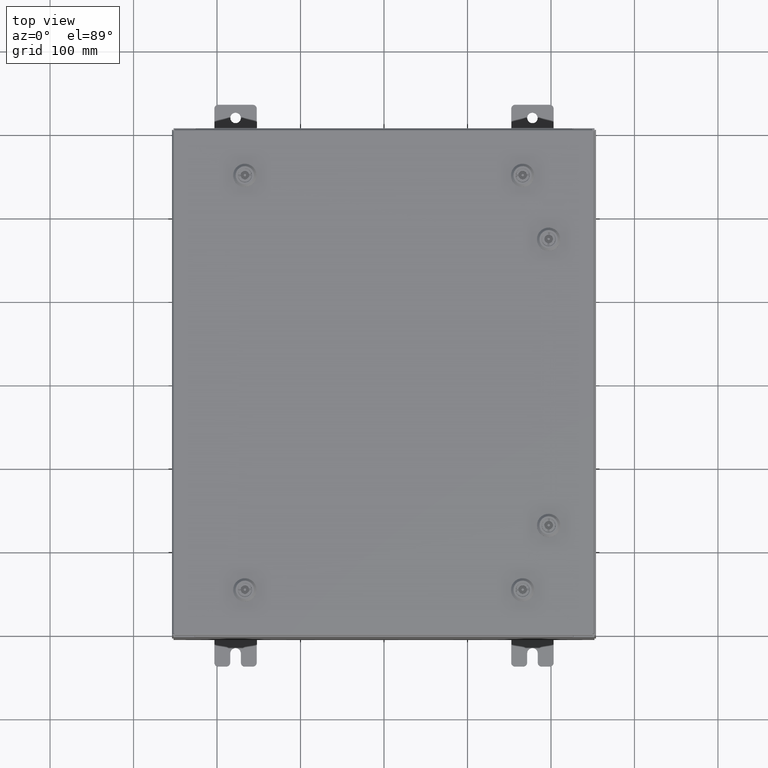
[diagram: clean part render]
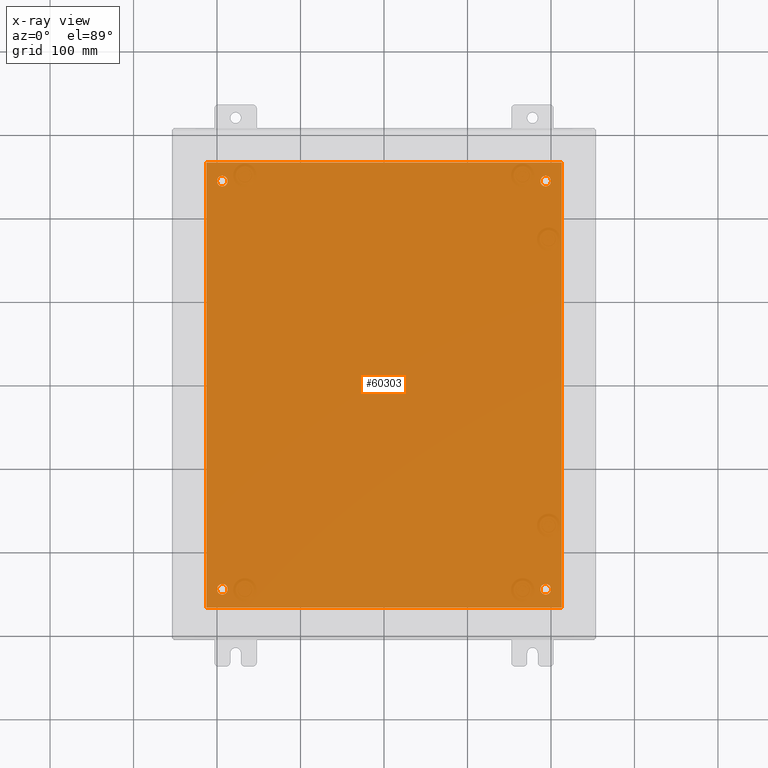
[diagram: x-ray — body ghosted, one internal face saturated and labeled with its STEP entity id]
A machine part, top view, then the same camera in x-ray: the body is ghosted and one INTERNAL B-rep face — a face not visible from any outside direction — is saturated and labeled: STEP entity #60303.
In plain terms, the highlighted planar face has unit normal (0, 0, -1).
Its self-contained STEP definition (entity closure, byte-faithful):
#283 = EDGE_CURVE ( 'NONE', #20112, #53220, #18385, .T. ) ;
#421 = AXIS2_PLACEMENT_3D ( 'NONE', #8248, #42482, #13147 ) ;
#750 = VERTEX_POINT ( 'NONE', #38375 ) ;
#876 = CARTESIAN_POINT ( 'NONE',  ( -7.375000000000004400, -9.625000000000001800, -0.1039999999999999800 ) ) ;
#1054 = VERTEX_POINT ( 'NONE', #876 ) ;
#1254 = CIRCLE ( 'NONE', #40331, 0.2499999999999987000 ) ;
#1993 = CIRCLE ( 'NONE', #15356, 0.2499999999999987000 ) ;
#2458 = ORIENTED_EDGE ( 'NONE', *, *, #34299, .T. ) ;
#3532 = AXIS2_PLACEMENT_3D ( 'NONE', #3959, #38184, #8889 ) ;
#3959 = CARTESIAN_POINT ( 'NONE',  ( -7.625000000000004400, 9.625000000000001800, -0.1039999999999999800 ) ) ;
#4273 = ORIENTED_EDGE ( 'NONE', *, *, #26364, .F. ) ;
#4974 = CIRCLE ( 'NONE', #61328, 0.2499999999999998100 ) ;
#5255 = EDGE_CURVE ( 'NONE', #9130, #750, #28496, .T. ) ;
#5302 = VECTOR ( 'NONE', #9728, 39.37007874015748100 ) ;
#6012 = CARTESIAN_POINT ( 'NONE',  ( -7.375000000000004400, 9.625000000000001800, -0.1039999999999999800 ) ) ;
#6296 = VECTOR ( 'NONE', #17608, 39.37007874015748100 ) ;
#6878 = DIRECTION ( 'NONE',  ( -0.0000000000000000000, -0.0000000000000000000, 1.000000000000000000 ) ) ;
#7335 = ORIENTED_EDGE ( 'NONE', *, *, #52748, .T. ) ;
#7644 = CARTESIAN_POINT ( 'NONE',  ( 7.625000000000004400, -9.625000000000001800, -0.1039999999999999800 ) ) ;
#7758 = ORIENTED_EDGE ( 'NONE', *, *, #18011, .T. ) ;
#8248 = CARTESIAN_POINT ( 'NONE',  ( -7.625000000000004400, -9.625000000000001800, -0.1039999999999999800 ) ) ;
#8889 = DIRECTION ( 'NONE',  ( -1.000000000000000000, 0.0000000000000000000, 0.0000000000000000000 ) ) ;
#9130 = VERTEX_POINT ( 'NONE', #6012 ) ;
#9234 = CARTESIAN_POINT ( 'NONE',  ( 0.0000000000000000000, 0.0000000000000000000, -0.1039999999999999800 ) ) ;
#9343 = CARTESIAN_POINT ( 'NONE',  ( 7.875000000000002700, 9.625000000000001800, -0.1039999999999999800 ) ) ;
#9728 = DIRECTION ( 'NONE',  ( 0.0000000000000000000, -1.000000000000000000, 0.0000000000000000000 ) ) ;
#10306 = EDGE_LOOP ( 'NONE', ( #2458, #47687 ) ) ;
#11452 = CARTESIAN_POINT ( 'NONE',  ( 8.382999999999999100, -10.50000000000000200, -0.1039999999999998100 ) ) ;
#11831 = CARTESIAN_POINT ( 'NONE',  ( 8.382999999999999100, 10.50000000000000200, -0.1039999999999999800 ) ) ;
#12071 = CARTESIAN_POINT ( 'NONE',  ( 7.625000000000004400, -9.625000000000001800, -0.1039999999999999800 ) ) ;
#12523 = ORIENTED_EDGE ( 'NONE', *, *, #44602, .T. ) ;
#12533 = DIRECTION ( 'NONE',  ( -1.000000000000000000, 0.0000000000000000000, 0.0000000000000000000 ) ) ;
#13147 = DIRECTION ( 'NONE',  ( -1.000000000000000000, 0.0000000000000000000, 0.0000000000000000000 ) ) ;
#13152 = DIRECTION ( 'NONE',  ( 1.000000000000000000, 0.0000000000000000000, 0.0000000000000000000 ) ) ;
#13345 = AXIS2_PLACEMENT_3D ( 'NONE', #53386, #24022, #58351 ) ;
#14150 = DIRECTION ( 'NONE',  ( -1.000000000000000000, 0.0000000000000000000, -0.0000000000000000000 ) ) ;
#14801 = VERTEX_POINT ( 'NONE', #9343 ) ;
#15059 = VERTEX_POINT ( 'NONE', #56207 ) ;
#15356 = AXIS2_PLACEMENT_3D ( 'NONE', #12071, #46346, #16992 ) ;
#15421 = CARTESIAN_POINT ( 'NONE',  ( 8.382999999999999100, -10.50000000000000000, -0.1039999999999999800 ) ) ;
#16264 = CARTESIAN_POINT ( 'NONE',  ( 7.625000000000004400, 9.625000000000001800, -0.1039999999999999800 ) ) ;
#16379 = DIRECTION ( 'NONE',  ( 0.0000000000000000000, 1.000000000000000000, 0.0000000000000000000 ) ) ;
#16992 = DIRECTION ( 'NONE',  ( -1.000000000000000000, 0.0000000000000000000, 0.0000000000000000000 ) ) ;
#17608 = DIRECTION ( 'NONE',  ( -1.000000000000000000, -0.0000000000000000000, -0.0000000000000000000 ) ) ;
#18011 = EDGE_CURVE ( 'NONE', #14801, #15059, #1254, .T. ) ;
#18057 = CARTESIAN_POINT ( 'NONE',  ( -8.500000000000001800, -10.50000000000000000, -0.1039999999999999800 ) ) ;
#18385 = LINE ( 'NONE', #11452, #54440 ) ;
#19267 = LINE ( 'NONE', #32164, #6296 ) ;
#19528 = EDGE_LOOP ( 'NONE', ( #23968, #22156 ) ) ;
#20112 = VERTEX_POINT ( 'NONE', #15421 ) ;
#21151 = ORIENTED_EDGE ( 'NONE', *, *, #5255, .T. ) ;
#21190 = DIRECTION ( 'NONE',  ( -1.000000000000000000, 0.0000000000000000000, 0.0000000000000000000 ) ) ;
#21826 = AXIS2_PLACEMENT_3D ( 'NONE', #9234, #43487, #14150 ) ;
#21859 = VERTEX_POINT ( 'NONE', #50991 ) ;
#22156 = ORIENTED_EDGE ( 'NONE', *, *, #45587, .T. ) ;
#23151 = EDGE_CURVE ( 'NONE', #53220, #57715, #19267, .T. ) ;
#23631 = CARTESIAN_POINT ( 'NONE',  ( -7.625000000000004400, -9.625000000000001800, -0.1039999999999999800 ) ) ;
#23737 = ORIENTED_EDGE ( 'NONE', *, *, #36075, .F. ) ;
#23871 = ORIENTED_EDGE ( 'NONE', *, *, #23151, .F. ) ;
#23968 = ORIENTED_EDGE ( 'NONE', *, *, #40828, .T. ) ;
#24022 = DIRECTION ( 'NONE',  ( -0.0000000000000000000, -0.0000000000000000000, 1.000000000000000000 ) ) ;
#24286 = AXIS2_PLACEMENT_3D ( 'NONE', #16264, #50571, #21190 ) ;
#26364 = EDGE_CURVE ( 'NONE', #57715, #21859, #55899, .T. ) ;
#26804 = CIRCLE ( 'NONE', #44109, 0.2499999999999987000 ) ;
#28496 = CIRCLE ( 'NONE', #13345, 0.2499999999999998100 ) ;
#28561 = DIRECTION ( 'NONE',  ( -1.000000000000000000, 0.0000000000000000000, 0.0000000000000000000 ) ) ;
#28655 = VERTEX_POINT ( 'NONE', #34363 ) ;
#29333 = EDGE_LOOP ( 'NONE', ( #7758, #12523 ) ) ;
#32164 = CARTESIAN_POINT ( 'NONE',  ( -8.500000000000001800, 10.50000000000000200, -0.1039999999999999800 ) ) ;
#34299 = EDGE_CURVE ( 'NONE', #54322, #41077, #26804, .T. ) ;
#34327 = EDGE_LOOP ( 'NONE', ( #21151, #7335 ) ) ;
#34334 = FACE_OUTER_BOUND ( 'NONE', #50452, .T. ) ;
#34363 = CARTESIAN_POINT ( 'NONE',  ( -7.875000000000003600, -9.625000000000001800, -0.1039999999999999800 ) ) ;
#36075 = EDGE_CURVE ( 'NONE', #21859, #20112, #58918, .T. ) ;
#36168 = CARTESIAN_POINT ( 'NONE',  ( 7.625000000000004400, 9.625000000000001800, -0.1039999999999999800 ) ) ;
#36788 = CIRCLE ( 'NONE', #3532, 0.2499999999999998100 ) ;
#38184 = DIRECTION ( 'NONE',  ( -0.0000000000000000000, -0.0000000000000000000, 1.000000000000000000 ) ) ;
#38375 = CARTESIAN_POINT ( 'NONE',  ( -7.875000000000003600, 9.625000000000001800, -0.1039999999999999800 ) ) ;
#38549 = PLANE ( 'NONE',  #21826 ) ;
#40331 = AXIS2_PLACEMENT_3D ( 'NONE', #36168, #6878, #41125 ) ;
#40828 = EDGE_CURVE ( 'NONE', #1054, #28655, #50190, .T. ) ;
#41046 = CIRCLE ( 'NONE', #24286, 0.2499999999999987000 ) ;
#41077 = VERTEX_POINT ( 'NONE', #59554 ) ;
#41125 = DIRECTION ( 'NONE',  ( -1.000000000000000000, 0.0000000000000000000, 0.0000000000000000000 ) ) ;
#41877 = DIRECTION ( 'NONE',  ( -0.0000000000000000000, -0.0000000000000000000, 1.000000000000000000 ) ) ;
#42482 = DIRECTION ( 'NONE',  ( -0.0000000000000000000, -0.0000000000000000000, 1.000000000000000000 ) ) ;
#43487 = DIRECTION ( 'NONE',  ( 0.0000000000000000000, 0.0000000000000000000, -1.000000000000000000 ) ) ;
#43998 = CARTESIAN_POINT ( 'NONE',  ( -8.383000000000002700, 10.50000000000000400, -0.1039999999999998100 ) ) ;
#44109 = AXIS2_PLACEMENT_3D ( 'NONE', #7644, #41877, #12533 ) ;
#44602 = EDGE_CURVE ( 'NONE', #15059, #14801, #41046, .T. ) ;
#44738 = ORIENTED_EDGE ( 'NONE', *, *, #283, .F. ) ;
#45587 = EDGE_CURVE ( 'NONE', #28655, #1054, #4974, .T. ) ;
#46346 = DIRECTION ( 'NONE',  ( -0.0000000000000000000, -0.0000000000000000000, 1.000000000000000000 ) ) ;
#47061 = CARTESIAN_POINT ( 'NONE',  ( -8.383000000000002700, 10.50000000000000200, -0.1039999999999998100 ) ) ;
#47412 = FACE_BOUND ( 'NONE', #34327, .T. ) ;
#47530 = CARTESIAN_POINT ( 'NONE',  ( 7.875000000000002700, -9.625000000000001800, -0.1039999999999999800 ) ) ;
#47687 = ORIENTED_EDGE ( 'NONE', *, *, #63550, .T. ) ;
#48948 = FACE_BOUND ( 'NONE', #10306, .T. ) ;
#50190 = CIRCLE ( 'NONE', #421, 0.2499999999999998100 ) ;
#50452 = EDGE_LOOP ( 'NONE', ( #23737, #4273, #23871, #44738 ) ) ;
#50571 = DIRECTION ( 'NONE',  ( -0.0000000000000000000, -0.0000000000000000000, 1.000000000000000000 ) ) ;
#50991 = CARTESIAN_POINT ( 'NONE',  ( -8.383000000000002700, -10.50000000000000000, -0.1039999999999998100 ) ) ;
#52748 = EDGE_CURVE ( 'NONE', #750, #9130, #36788, .T. ) ;
#53220 = VERTEX_POINT ( 'NONE', #11831 ) ;
#53386 = CARTESIAN_POINT ( 'NONE',  ( -7.625000000000004400, 9.625000000000001800, -0.1039999999999999800 ) ) ;
#54322 = VERTEX_POINT ( 'NONE', #47530 ) ;
#54440 = VECTOR ( 'NONE', #16379, 39.37007874015748100 ) ;
#55899 = LINE ( 'NONE', #43998, #5302 ) ;
#56207 = CARTESIAN_POINT ( 'NONE',  ( 7.375000000000005300, 9.625000000000001800, -0.1039999999999999800 ) ) ;
#57386 = VECTOR ( 'NONE', #13152, 39.37007874015748100 ) ;
#57715 = VERTEX_POINT ( 'NONE', #47061 ) ;
#57964 = DIRECTION ( 'NONE',  ( -0.0000000000000000000, -0.0000000000000000000, 1.000000000000000000 ) ) ;
#58351 = DIRECTION ( 'NONE',  ( -1.000000000000000000, 0.0000000000000000000, 0.0000000000000000000 ) ) ;
#58918 = LINE ( 'NONE', #18057, #57386 ) ;
#59554 = CARTESIAN_POINT ( 'NONE',  ( 7.375000000000005300, -9.625000000000001800, -0.1039999999999999800 ) ) ;
#60303 = ADVANCED_FACE ( 'NONE', ( #62016, #48948, #60487, #47412, #34334 ), #38549, .T. ) ;
#60487 = FACE_BOUND ( 'NONE', #29333, .T. ) ;
#61328 = AXIS2_PLACEMENT_3D ( 'NONE', #23631, #57964, #28561 ) ;
#62016 = FACE_BOUND ( 'NONE', #19528, .T. ) ;
#63550 = EDGE_CURVE ( 'NONE', #41077, #54322, #1993, .T. ) ;